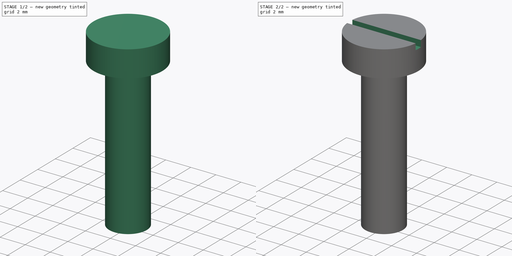
[diagram: build sequence overview — one tinted view per stage of 2, left to right]
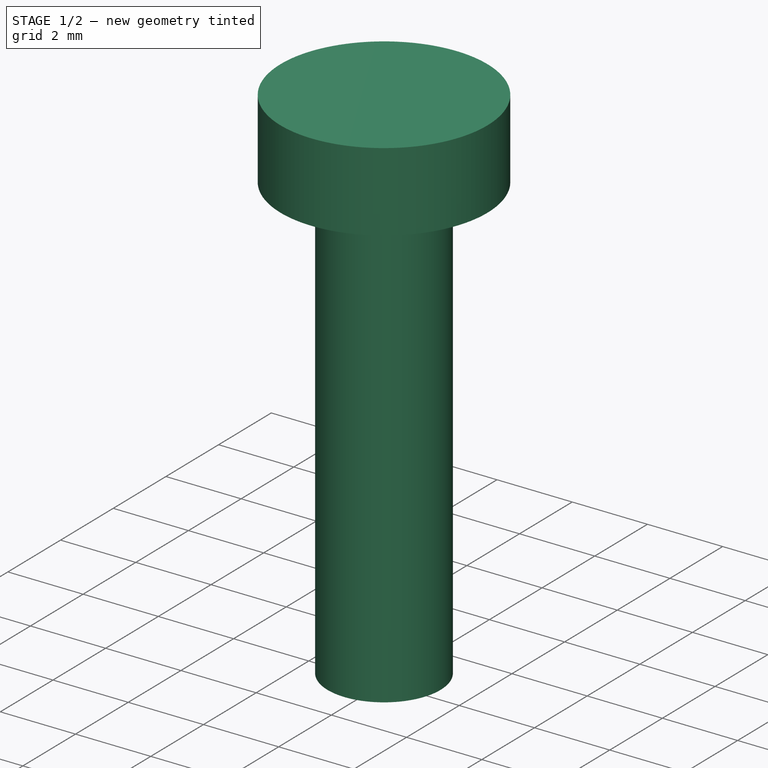
[diagram: stage 1 of 2 — iso view after this stage's code; geometry added in this stage tinted green]
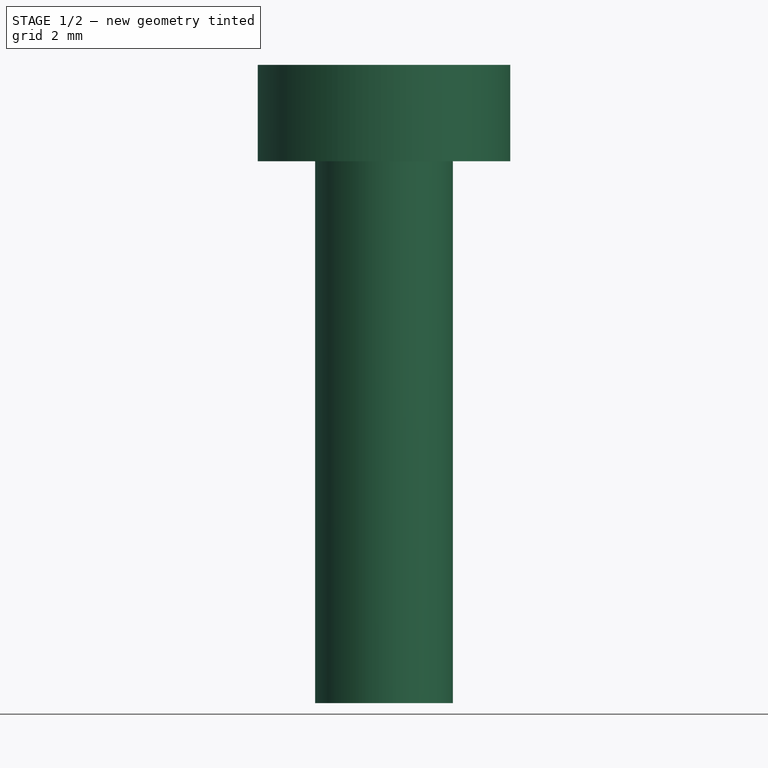
[diagram: stage 1 of 2 — front view after this stage's code; geometry added in this stage tinted green]
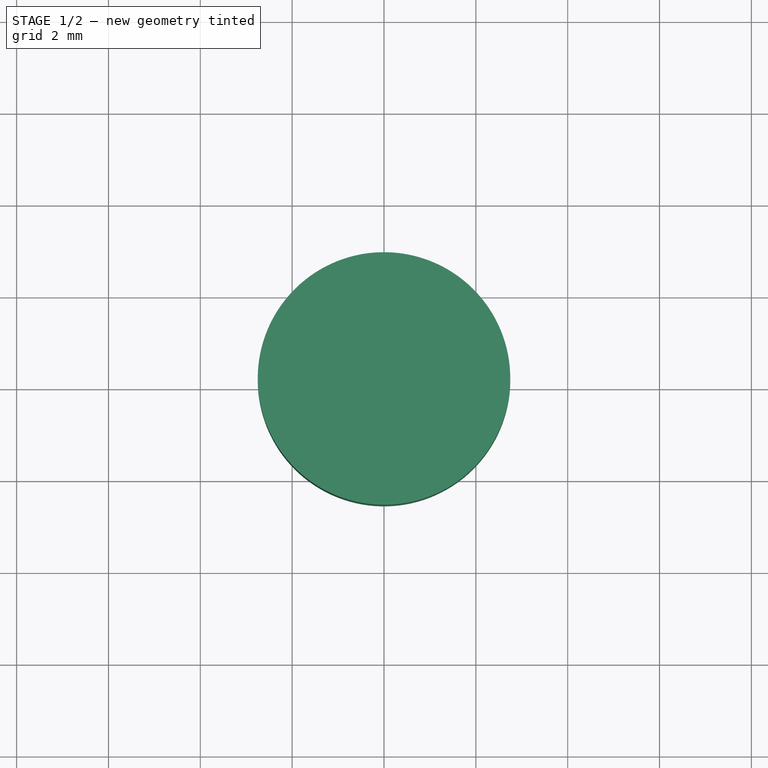
[diagram: stage 1 of 2 — top view after this stage's code; geometry added in this stage tinted green]
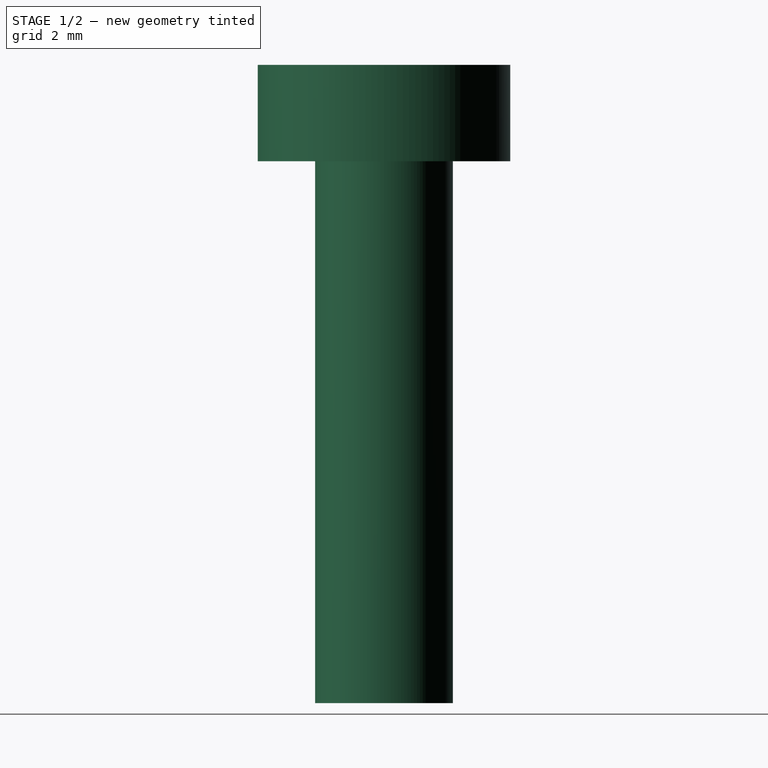
[diagram: stage 1 of 2 — right view after this stage's code; geometry added in this stage tinted green]
FCSTD DOCUMENT  (FreeCAD 0.14R3702 (Git))
Label: M3x12-cylinder-head
License: CC-BY 3.0
LicenseURL: http://creativecommons.org/licenses/by/3.0/
objects: Sketcher::SketchObject×2, PartDesign::Revolution×1, PartDesign::Pocket×1
note: 6 computed .brp shape members not serialized (recipe doc carries the construction recipe); baked Part::Feature solids carry a one-line shape summary decoded from their .brp

FEATURE [Sketcher::SketchObject] Sketch001  label="M3x12-cyl-body-sketch"
  Placement = pos=(0,0,0) rot=(1,0,0;1.5708rad)
  sketch-geometry (6):
    g0: LineSegment StartX=0 StartY=0 StartZ=0 EndX=1.5 EndY=0 EndZ=0
    g1: LineSegment StartX=1.5 StartY=0 StartZ=0 EndX=1.5 EndY=11.8 EndZ=0
    g2: LineSegment StartX=1.5 StartY=11.8 StartZ=0 EndX=2.75 EndY=11.8 EndZ=0
    g3: LineSegment StartX=2.75 StartY=11.8 StartZ=0 EndX=2.75 EndY=13.9 EndZ=0
    g4: LineSegment StartX=2.75 StartY=13.9 StartZ=0 EndX=0 EndY=13.9 EndZ=0
    g5: LineSegment StartX=0 StartY=13.9 StartZ=0 EndX=0 EndY=0 EndZ=0
  constraints (17):
    c: Horizontal(g0)
    c: Coincident(g0,g1)
    c: Vertical(g1)
    c: Coincident(g1,g2)
    c: Coincident(g2,g3)
    c: Vertical(g3)
    c: Coincident(g3,g4)
    c: Horizontal(g4)
    c: Coincident(g4,g5)
    c: Coincident(g5,g0)
    c: Vertical(g5)
    c: Horizontal(g2)
    c: Coincident(g0,g-1)
    c: DistanceY(g5) = -13.9
    c: DistanceX(g0) = 1.5
    c: DistanceX(g4) = -2.75
    c: DistanceY(g1) = 11.8
FEATURE [PartDesign::Revolution] Revolution  label="M3x12-cyl-body"
  Angle = 360
  Axis = (0,0,1)
  Base = (0,0,0)
  Placement = pos=(0,0,0) rot=(1,0,0;1.5708rad)
  ReferenceAxis = -> Sketch001 [V_Axis]
  Reversed = true
  Sketch = -> Sketch001
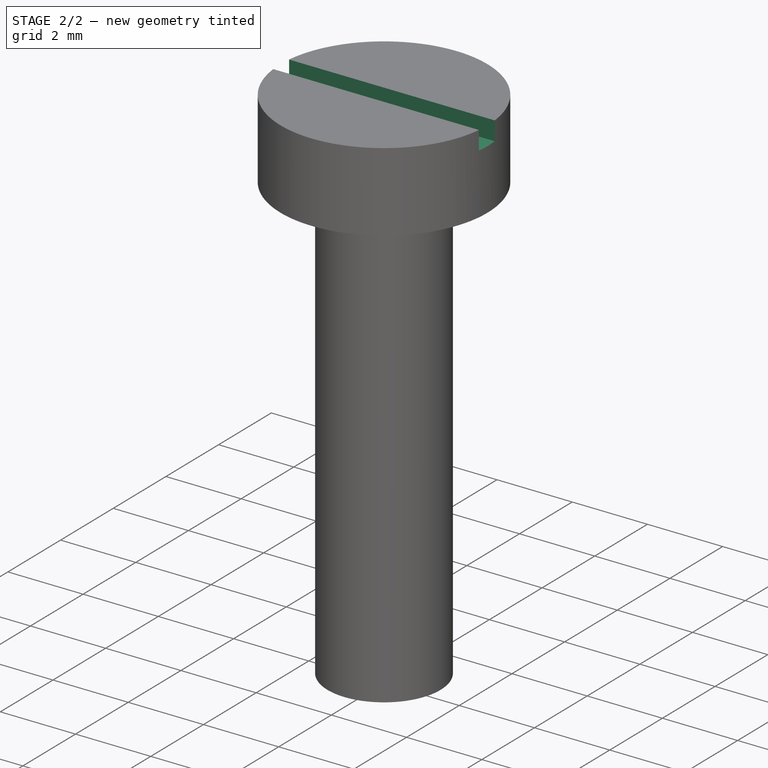
[diagram: stage 2 of 2 — iso view after this stage's code; geometry added in this stage tinted green]
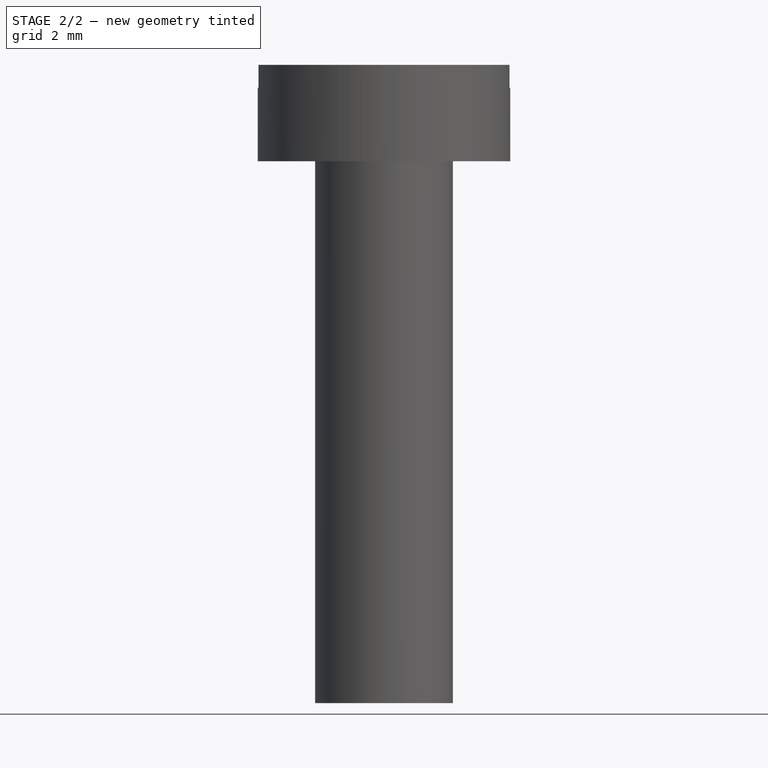
[diagram: stage 2 of 2 — front view after this stage's code; geometry added in this stage tinted green]
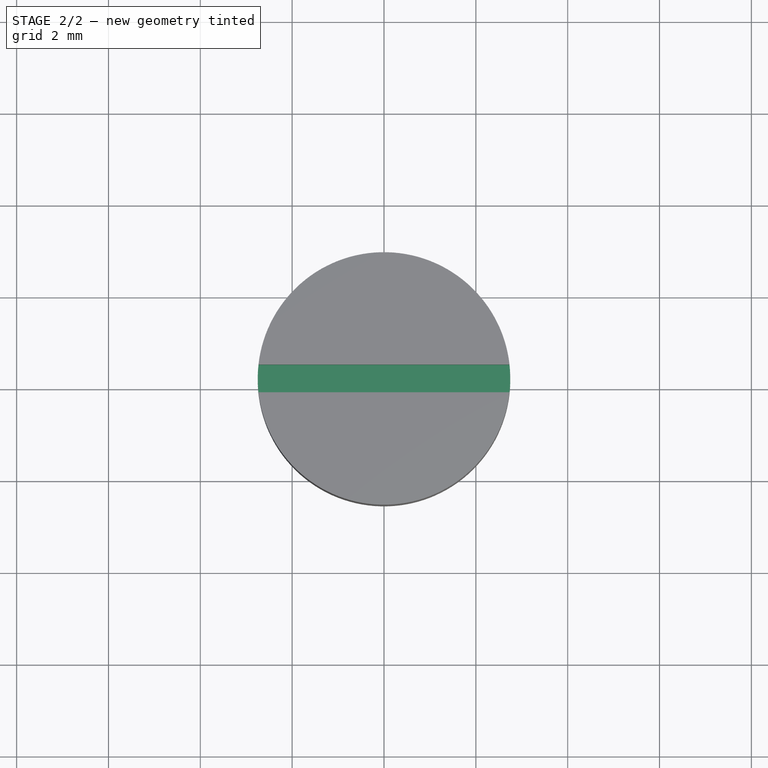
[diagram: stage 2 of 2 — top view after this stage's code; geometry added in this stage tinted green]
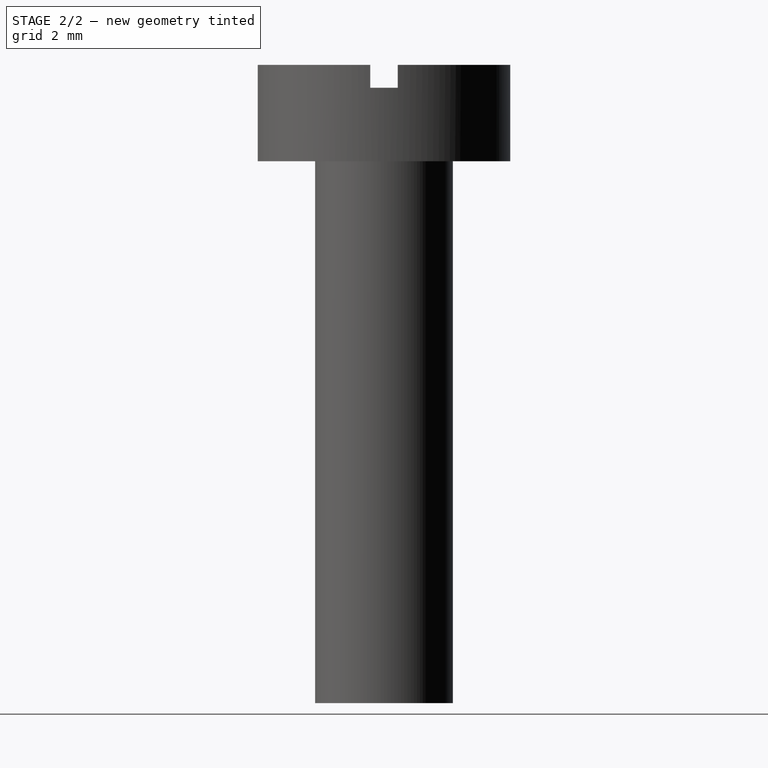
[diagram: stage 2 of 2 — right view after this stage's code; geometry added in this stage tinted green]
FEATURE [Sketcher::SketchObject] Sketch  label="head-slot-sketch"
  ExternalGeometry = -> [Revolution]
  Placement = pos=(0,0,13.9) rot=(0,0,1;3.14159rad)
  Support = -> Revolution [Face5]
  sketch-geometry (5):
    g0: LineSegment StartX=-2.93359 StartY=0.3 StartZ=0 EndX=2.93359 EndY=0.3 EndZ=0
    g1: LineSegment StartX=2.93359 StartY=0.3 StartZ=0 EndX=2.93359 EndY=-0.3 EndZ=0
    g2: LineSegment StartX=2.93359 StartY=-0.3 StartZ=0 EndX=-2.93359 EndY=-0.3 EndZ=0
    g3: LineSegment StartX=-2.93359 StartY=-0.3 StartZ=0 EndX=-2.93359 EndY=0.3 EndZ=0
    g4: GeomPoint [constr] X=-2.73359 Y=0.3 Z=0
  constraints (13):
    c: Coincident(g0,g1)
    c: Coincident(g1,g2)
    c: Coincident(g2,g3)
    c: Coincident(g3,g0)
    c: Horizontal(g0)
    c: Horizontal(g2)
    c: Vertical(g1)
    c: Vertical(g3)
    c: Symmetric(g0,g1,g-1)
    c: DistanceY(g1) = -0.6
    c: PointOnObject(g4,g0)
    c: PointOnObject(g4,g-3)
    c: DistanceX(g0,g4) = 0.2
FEATURE [PartDesign::Pocket] Pocket  label="M3x12-cyl"
  Length = 0.5
  Placement = pos=(0,0,0) rot=(1,0,0;1.5708rad)
  Sketch = -> Sketch
  Type = 0
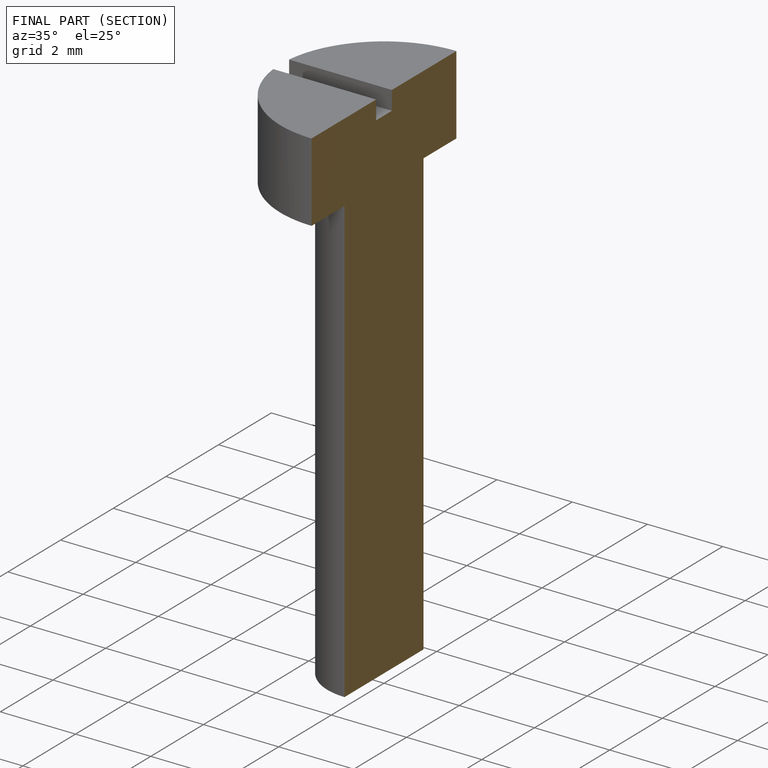
[diagram: finished part — half-section view (interior)]
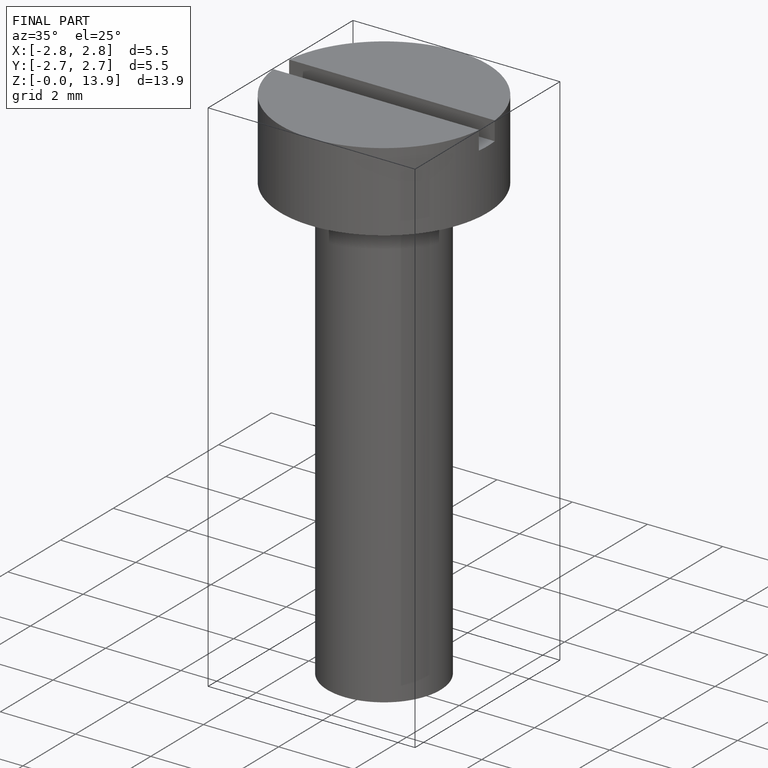
[diagram: finished part — iso view with bounding-box wireframe]
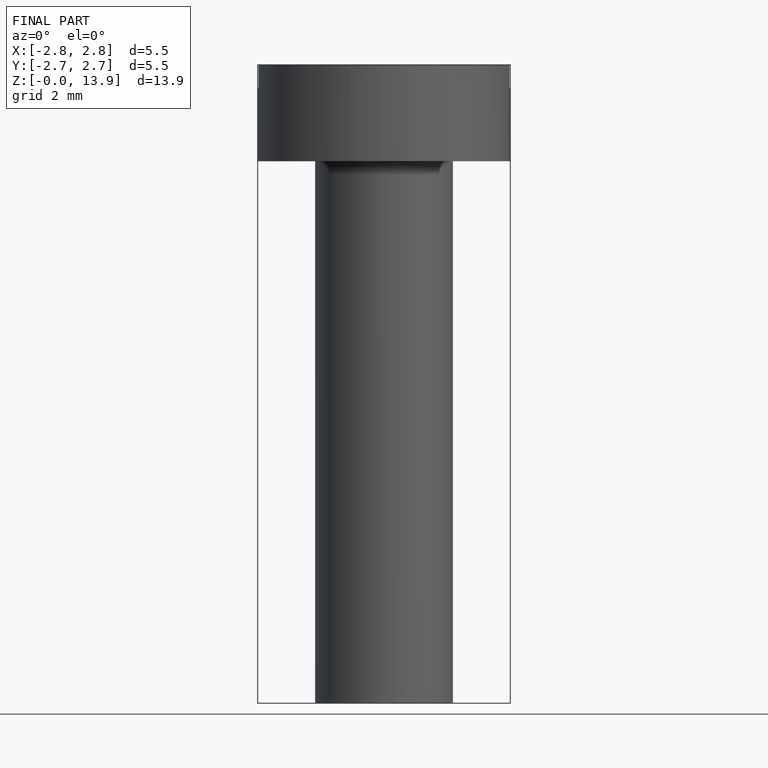
[diagram: finished part — front view with bounding-box wireframe]
